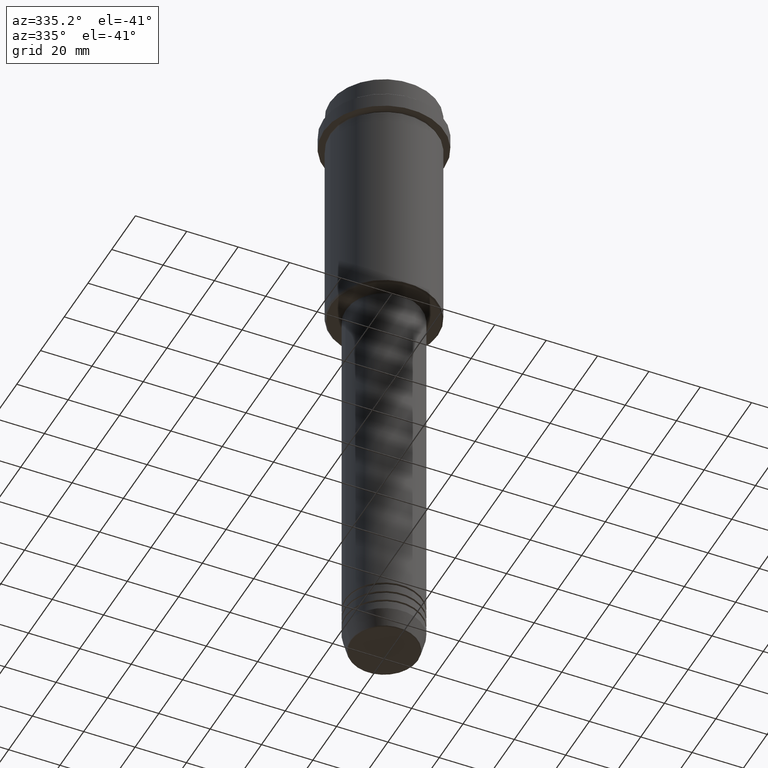
[diagram: clean part render]
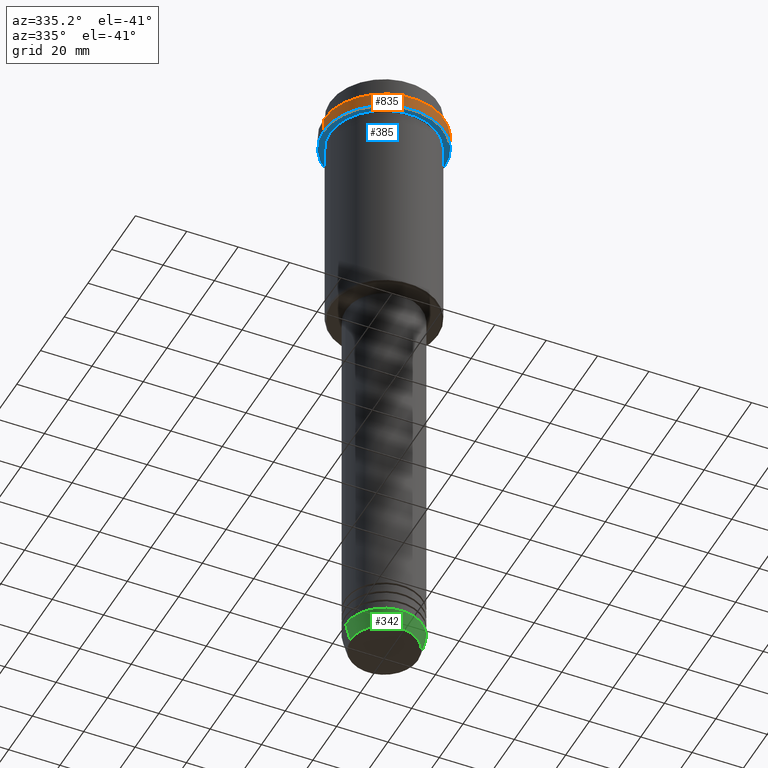
[diagram: same view with three faces highlighted in distinct colors, each labeled with its STEP entity id]
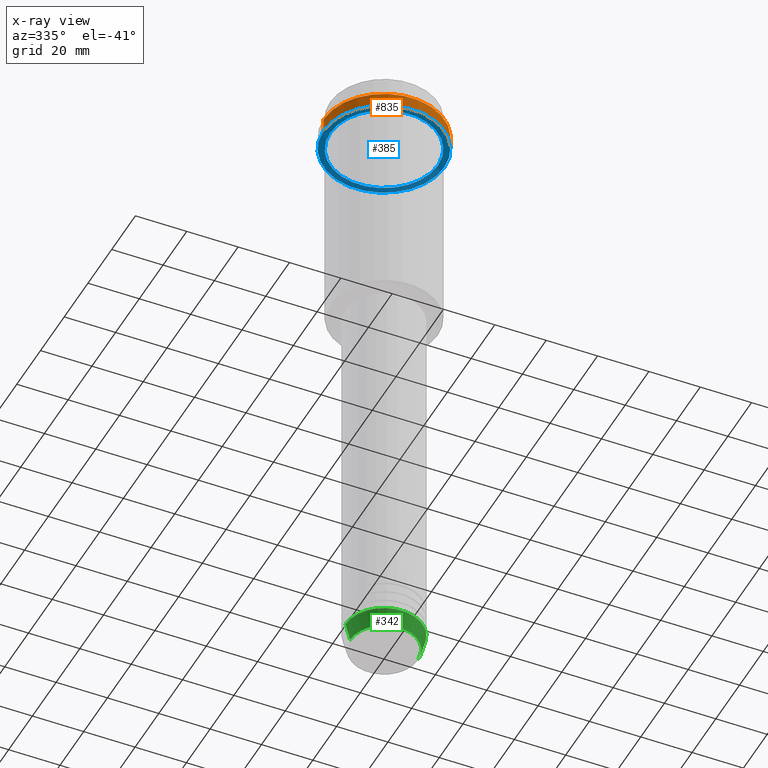
[diagram: x-ray of the same camera — body ghosted, the three highlighted faces saturated]
A machine part, auxiliary view with three faces highlighted in distinct colors.
The next image is the same camera in x-ray (body ghosted, the three faces saturated) — at least one of them is partly hidden behind the body in this view.
Their STEP definitions:

[orange] entity #835 — the highlighted cylindrical surface (partial cylindrical patch) has radius 23.5 mm, axis along (-0, -0, 1).
#4 = CARTESIAN_POINT ( 'NONE',  ( 0.000000000000000000, 0.000000000000000000, 0.000000000000000000 ) ) ;
#45 = VECTOR ( 'NONE', #193, 1000.000000000000000 ) ;
#66 = EDGE_CURVE ( 'NONE', #1218, #545, #152, .T. ) ;
#84 = DIRECTION ( 'NONE',  ( 1.000000000000000000, 0.000000000000000000, 0.000000000000000000 ) ) ;
#122 = CARTESIAN_POINT ( 'NONE',  ( -23.50000000000000000, 2.877919977996280320E-15, -9.499999999999944933 ) ) ;
#123 = AXIS2_PLACEMENT_3D ( 'NONE', #305, #643, #84 ) ;
#152 = LINE ( 'NONE', #605, #618 ) ;
#157 = ORIENTED_EDGE ( 'NONE', *, *, #662, .F. ) ;
#193 = DIRECTION ( 'NONE',  ( -0.000000000000000000, -0.000000000000000000, 1.000000000000000000 ) ) ;
#280 = CIRCLE ( 'NONE', #369, 23.50000000000000000 ) ;
#305 = CARTESIAN_POINT ( 'NONE',  ( 0.000000000000000000, 0.000000000000000000, -15.00000000000000000 ) ) ;
#327 = DIRECTION ( 'NONE',  ( 1.000000000000000000, 0.000000000000000000, 0.000000000000000000 ) ) ;
#330 = ORIENTED_EDGE ( 'NONE', *, *, #1154, .T. ) ;
#343 = ORIENTED_EDGE ( 'NONE', *, *, #1221, .T. ) ;
#369 = AXIS2_PLACEMENT_3D ( 'NONE', #1151, #1371, #510 ) ;
#468 = CARTESIAN_POINT ( 'NONE',  ( 23.50000000000000000, 0.000000000000000000, -9.499999999999944933 ) ) ;
#510 = DIRECTION ( 'NONE',  ( 1.000000000000000000, 0.000000000000000000, 0.000000000000000000 ) ) ;
#517 = CARTESIAN_POINT ( 'NONE',  ( -23.50000000000000000, 2.877919977996280320E-15, 0.000000000000000000 ) ) ;
#545 = VERTEX_POINT ( 'NONE', #468 ) ;
#548 = CYLINDRICAL_SURFACE ( 'NONE', #1171, 23.50000000000000000 ) ;
#605 = CARTESIAN_POINT ( 'NONE',  ( 23.50000000000000000, 0.000000000000000000, 0.000000000000000000 ) ) ;
#618 = VECTOR ( 'NONE', #930, 1000.000000000000000 ) ;
#624 = VERTEX_POINT ( 'NONE', #747 ) ;
#643 = DIRECTION ( 'NONE',  ( -0.000000000000000000, -0.000000000000000000, 1.000000000000000000 ) ) ;
#657 = CARTESIAN_POINT ( 'NONE',  ( 23.50000000000000355, 0.000000000000000000, -15.00000000000000000 ) ) ;
#662 = EDGE_CURVE ( 'NONE', #624, #1372, #828, .T. ) ;
#747 = CARTESIAN_POINT ( 'NONE',  ( -23.50000000000000711, 2.877919977996281109E-15, -15.00000000000000000 ) ) ;
#828 = LINE ( 'NONE', #517, #45 ) ;
#835 = ADVANCED_FACE ( 'NONE', ( #1407 ), #548, .T. ) ;
#875 = EDGE_LOOP ( 'NONE', ( #157, #343, #1224, #330 ) ) ;
#930 = DIRECTION ( 'NONE',  ( -0.000000000000000000, -0.000000000000000000, 1.000000000000000000 ) ) ;
#1151 = CARTESIAN_POINT ( 'NONE',  ( 0.000000000000000000, 0.000000000000000000, -9.499999999999944933 ) ) ;
#1154 = EDGE_CURVE ( 'NONE', #545, #1372, #280, .T. ) ;
#1171 = AXIS2_PLACEMENT_3D ( 'NONE', #4, #1315, #327 ) ;
#1172 = CIRCLE ( 'NONE', #123, 23.50000000000000355 ) ;
#1218 = VERTEX_POINT ( 'NONE', #657 ) ;
#1221 = EDGE_CURVE ( 'NONE', #624, #1218, #1172, .T. ) ;
#1224 = ORIENTED_EDGE ( 'NONE', *, *, #66, .T. ) ;
#1315 = DIRECTION ( 'NONE',  ( -0.000000000000000000, -0.000000000000000000, 1.000000000000000000 ) ) ;
#1371 = DIRECTION ( 'NONE',  ( 0.000000000000000000, 0.000000000000000000, -1.000000000000000000 ) ) ;
#1372 = VERTEX_POINT ( 'NONE', #122 ) ;
#1407 = FACE_OUTER_BOUND ( 'NONE', #875, .T. ) ;

[blue] entity #385 — the highlighted planar face has unit normal (0, 0, -1).
#6 = DIRECTION ( 'NONE',  ( -1.000000000000000000, 0.000000000000000000, 0.000000000000000000 ) ) ;
#48 = CARTESIAN_POINT ( 'NONE',  ( 20.99999999999999289, 2.571758278209440872E-15, -15.00000000000000178 ) ) ;
#65 = ORIENTED_EDGE ( 'NONE', *, *, #319, .T. ) ;
#84 = DIRECTION ( 'NONE',  ( 1.000000000000000000, 0.000000000000000000, 0.000000000000000000 ) ) ;
#93 = DIRECTION ( 'NONE',  ( -0.000000000000000000, -0.000000000000000000, 1.000000000000000000 ) ) ;
#106 = CARTESIAN_POINT ( 'NONE',  ( 0.000000000000000000, 0.000000000000000000, -15.00000000000000178 ) ) ;
#123 = AXIS2_PLACEMENT_3D ( 'NONE', #305, #643, #84 ) ;
#132 = ORIENTED_EDGE ( 'NONE', *, *, #843, .F. ) ;
#170 = ORIENTED_EDGE ( 'NONE', *, *, #423, .T. ) ;
#218 = DIRECTION ( 'NONE',  ( -0.000000000000000000, -0.000000000000000000, 1.000000000000000000 ) ) ;
#223 = DIRECTION ( 'NONE',  ( 0.000000000000000000, 0.000000000000000000, -1.000000000000000000 ) ) ;
#228 = PLANE ( 'NONE',  #409 ) ;
#231 = EDGE_LOOP ( 'NONE', ( #132, #1357 ) ) ;
#232 = CIRCLE ( 'NONE', #437, 23.50000000000000355 ) ;
#305 = CARTESIAN_POINT ( 'NONE',  ( 0.000000000000000000, 0.000000000000000000, -15.00000000000000000 ) ) ;
#312 = EDGE_LOOP ( 'NONE', ( #65, #170 ) ) ;
#314 = DIRECTION ( 'NONE',  ( -0.000000000000000000, -0.000000000000000000, 1.000000000000000000 ) ) ;
#319 = EDGE_CURVE ( 'NONE', #763, #539, #434, .T. ) ;
#322 = AXIS2_PLACEMENT_3D ( 'NONE', #428, #218, #983 ) ;
#385 = ADVANCED_FACE ( 'NONE', ( #1300, #1190 ), #228, .T. ) ;
#409 = AXIS2_PLACEMENT_3D ( 'NONE', #1202, #223, #550 ) ;
#423 = EDGE_CURVE ( 'NONE', #539, #763, #922, .T. ) ;
#428 = CARTESIAN_POINT ( 'NONE',  ( 0.000000000000000000, 0.000000000000000000, -15.00000000000000178 ) ) ;
#434 = CIRCLE ( 'NONE', #1233, 20.99999999999999289 ) ;
#437 = AXIS2_PLACEMENT_3D ( 'NONE', #441, #93, #526 ) ;
#441 = CARTESIAN_POINT ( 'NONE',  ( 0.000000000000000000, 0.000000000000000000, -15.00000000000000000 ) ) ;
#526 = DIRECTION ( 'NONE',  ( 1.000000000000000000, 0.000000000000000000, 0.000000000000000000 ) ) ;
#539 = VERTEX_POINT ( 'NONE', #48 ) ;
#550 = DIRECTION ( 'NONE',  ( -1.000000000000000000, 0.000000000000000000, -0.000000000000000000 ) ) ;
#624 = VERTEX_POINT ( 'NONE', #747 ) ;
#643 = DIRECTION ( 'NONE',  ( -0.000000000000000000, -0.000000000000000000, 1.000000000000000000 ) ) ;
#657 = CARTESIAN_POINT ( 'NONE',  ( 23.50000000000000355, 0.000000000000000000, -15.00000000000000000 ) ) ;
#747 = CARTESIAN_POINT ( 'NONE',  ( -23.50000000000000711, 2.877919977996281109E-15, -15.00000000000000000 ) ) ;
#763 = VERTEX_POINT ( 'NONE', #1105 ) ;
#843 = EDGE_CURVE ( 'NONE', #1218, #624, #232, .T. ) ;
#922 = CIRCLE ( 'NONE', #322, 20.99999999999999289 ) ;
#983 = DIRECTION ( 'NONE',  ( -1.000000000000000000, 0.000000000000000000, 0.000000000000000000 ) ) ;
#1105 = CARTESIAN_POINT ( 'NONE',  ( -20.99999999999999289, 0.000000000000000000, -15.00000000000000178 ) ) ;
#1172 = CIRCLE ( 'NONE', #123, 23.50000000000000355 ) ;
#1190 = FACE_OUTER_BOUND ( 'NONE', #231, .T. ) ;
#1202 = CARTESIAN_POINT ( 'NONE',  ( 0.000000000000000000, 23.50000000000000355, -15.00000000000000178 ) ) ;
#1218 = VERTEX_POINT ( 'NONE', #657 ) ;
#1221 = EDGE_CURVE ( 'NONE', #624, #1218, #1172, .T. ) ;
#1233 = AXIS2_PLACEMENT_3D ( 'NONE', #106, #314, #6 ) ;
#1300 = FACE_BOUND ( 'NONE', #312, .T. ) ;
#1357 = ORIENTED_EDGE ( 'NONE', *, *, #1221, .F. ) ;

[green] entity #342 — the highlighted conical surface has half-angle 15 deg.
#21 = VECTOR ( 'NONE', #1125, 1000.000000000000000 ) ;
#28 = VERTEX_POINT ( 'NONE', #469 ) ;
#83 = VERTEX_POINT ( 'NONE', #803 ) ;
#155 = LINE ( 'NONE', #806, #477 ) ;
#159 = AXIS2_PLACEMENT_3D ( 'NONE', #1099, #771, #1078 ) ;
#181 = CARTESIAN_POINT ( 'NONE',  ( 0.000000000000000000, 0.000000000000000000, -249.6294095225512422 ) ) ;
#204 = CARTESIAN_POINT ( 'NONE',  ( 13.22365507213719482, 0.000000000000000000, -249.6294095225512422 ) ) ;
#247 = CARTESIAN_POINT ( 'NONE',  ( -15.00000000000000000, 1.836970198721029589E-15, -243.0000000000000000 ) ) ;
#271 = AXIS2_PLACEMENT_3D ( 'NONE', #479, #402, #1163 ) ;
#342 = ADVANCED_FACE ( 'NONE', ( #999 ), #987, .T. ) ;
#396 = DIRECTION ( 'NONE',  ( -0.000000000000000000, -0.000000000000000000, 1.000000000000000000 ) ) ;
#402 = DIRECTION ( 'NONE',  ( -0.000000000000000000, -0.000000000000000000, 1.000000000000000000 ) ) ;
#403 = ORIENTED_EDGE ( 'NONE', *, *, #500, .F. ) ;
#454 = AXIS2_PLACEMENT_3D ( 'NONE', #181, #396, #1364 ) ;
#459 = EDGE_CURVE ( 'NONE', #1349, #28, #155, .T. ) ;
#469 = CARTESIAN_POINT ( 'NONE',  ( 15.00000000000000000, 0.000000000000000000, -243.0000000000000000 ) ) ;
#477 = VECTOR ( 'NONE', #579, 1000.000000000000000 ) ;
#479 = CARTESIAN_POINT ( 'NONE',  ( 0.000000000000000000, 0.000000000000000000, -243.0000000000000000 ) ) ;
#500 = EDGE_CURVE ( 'NONE', #715, #83, #1228, .T. ) ;
#579 = DIRECTION ( 'NONE',  ( 0.2588190451025213501, 0.000000000000000000, 0.9659258262890680902 ) ) ;
#642 = ORIENTED_EDGE ( 'NONE', *, *, #1077, .T. ) ;
#715 = VERTEX_POINT ( 'NONE', #935 ) ;
#748 = CIRCLE ( 'NONE', #271, 15.00000000000000000 ) ;
#771 = DIRECTION ( 'NONE',  ( -0.000000000000000000, -0.000000000000000000, 1.000000000000000000 ) ) ;
#803 = CARTESIAN_POINT ( 'NONE',  ( -15.00000000000000000, 1.836970198721029589E-15, -243.0000000000000000 ) ) ;
#806 = CARTESIAN_POINT ( 'NONE',  ( 15.00000000000000000, 0.000000000000000000, -243.0000000000000000 ) ) ;
#935 = CARTESIAN_POINT ( 'NONE',  ( -13.22365507213719660, 1.728200442216588780E-15, -249.6294095225512422 ) ) ;
#987 = CONICAL_SURFACE ( 'NONE', #159, 15.00000000000000000, 0.2617993877991500740 ) ;
#999 = FACE_OUTER_BOUND ( 'NONE', #1004, .T. ) ;
#1004 = EDGE_LOOP ( 'NONE', ( #403, #642, #1006, #1246 ) ) ;
#1006 = ORIENTED_EDGE ( 'NONE', *, *, #459, .T. ) ;
#1077 = EDGE_CURVE ( 'NONE', #715, #1349, #1335, .T. ) ;
#1078 = DIRECTION ( 'NONE',  ( 1.000000000000000000, 0.000000000000000000, 0.000000000000000000 ) ) ;
#1099 = CARTESIAN_POINT ( 'NONE',  ( 0.000000000000000000, 0.000000000000000000, -243.0000000000000000 ) ) ;
#1113 = EDGE_CURVE ( 'NONE', #83, #28, #748, .T. ) ;
#1125 = DIRECTION ( 'NONE',  ( -0.2588190451025213501, 3.169619151431772337E-17, 0.9659258262890680902 ) ) ;
#1163 = DIRECTION ( 'NONE',  ( 1.000000000000000000, 0.000000000000000000, 0.000000000000000000 ) ) ;
#1228 = LINE ( 'NONE', #247, #21 ) ;
#1246 = ORIENTED_EDGE ( 'NONE', *, *, #1113, .F. ) ;
#1335 = CIRCLE ( 'NONE', #454, 13.22365507213719482 ) ;
#1349 = VERTEX_POINT ( 'NONE', #204 ) ;
#1364 = DIRECTION ( 'NONE',  ( 1.000000000000000000, 0.000000000000000000, 0.000000000000000000 ) ) ;